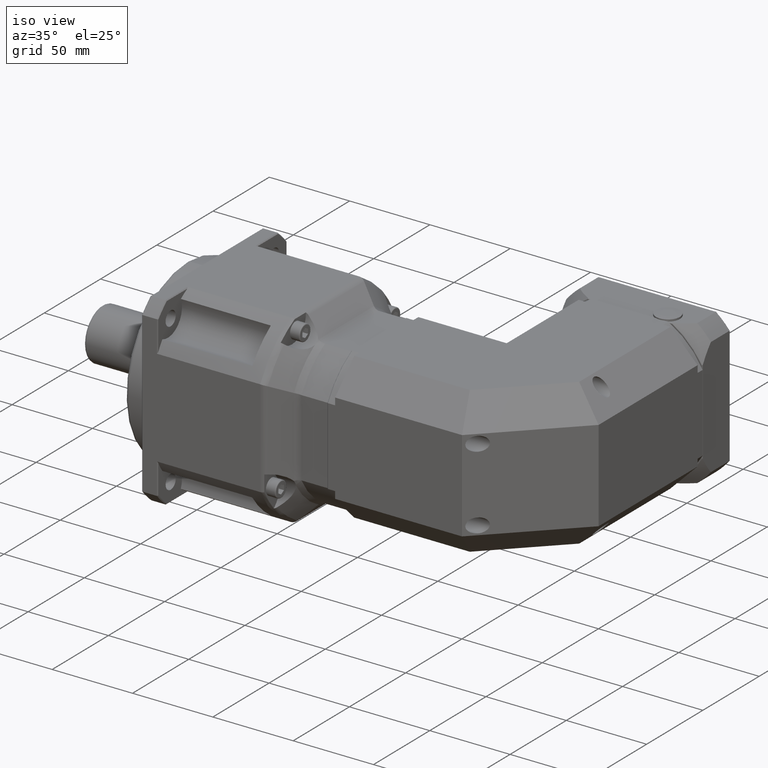
[diagram: clean part render]
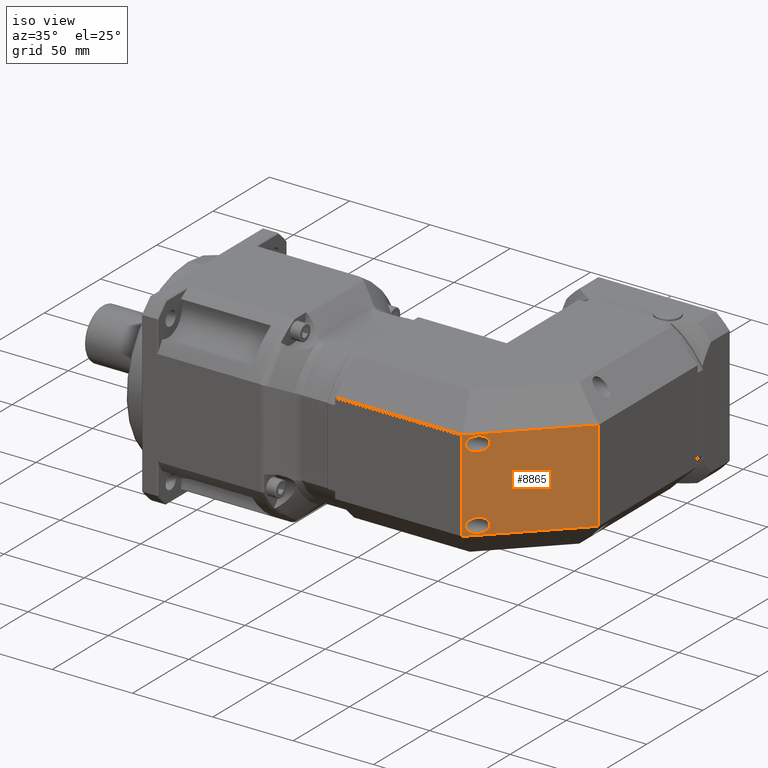
[diagram: same view with one face highlighted and labeled with its STEP entity id]
A machine part, iso view. The second image highlights one B-rep face of the part: STEP entity #8865.
In plain terms, the highlighted planar face has unit normal (0.7071, -0.7071, 0).
Its self-contained STEP definition (entity closure, byte-faithful):
#184=ELLIPSE('',#9743,6.36396103067893,4.5);
#185=ELLIPSE('',#9744,6.36396103067893,4.5);
#527=LINE('',#15135,#990);
#548=LINE('',#15200,#1011);
#549=LINE('',#15202,#1012);
#550=LINE('',#15203,#1013);
#990=VECTOR('',#11519,57.);
#1011=VECTOR('',#11578,70.7106781186548);
#1012=VECTOR('',#11579,56.9999999999709);
#1013=VECTOR('',#11580,70.7106781186548);
#1919=FACE_BOUND('',#3232,.T.);
#1920=FACE_BOUND('',#3233,.T.);
#2507=FACE_OUTER_BOUND('',#3231,.T.);
#3231=EDGE_LOOP('',(#7252,#7253,#7254,#7255));
#3232=EDGE_LOOP('',(#7256));
#3233=EDGE_LOOP('',(#7257));
#4472=VERTEX_POINT('',#15132);
#4473=VERTEX_POINT('',#15134);
#4498=VERTEX_POINT('',#15199);
#4499=VERTEX_POINT('',#15201);
#4500=VERTEX_POINT('',#15204);
#4501=VERTEX_POINT('',#15206);
#5466=EDGE_CURVE('',#4473,#4472,#527,.T.);
#5497=EDGE_CURVE('',#4498,#4472,#548,.T.);
#5498=EDGE_CURVE('',#4498,#4499,#549,.T.);
#5499=EDGE_CURVE('',#4473,#4499,#550,.T.);
#5500=EDGE_CURVE('',#4500,#4500,#184,.T.);
#5501=EDGE_CURVE('',#4501,#4501,#185,.T.);
#7252=ORIENTED_EDGE('',*,*,#5497,.F.);
#7253=ORIENTED_EDGE('',*,*,#5498,.T.);
#7254=ORIENTED_EDGE('',*,*,#5499,.F.);
#7255=ORIENTED_EDGE('',*,*,#5466,.T.);
#7256=ORIENTED_EDGE('',*,*,#5500,.T.);
#7257=ORIENTED_EDGE('',*,*,#5501,.T.);
#8390=PLANE('',#9742);
#8865=ADVANCED_FACE('',(#2507,#1919,#1920),#8390,.T.);
#9742=AXIS2_PLACEMENT_3D('',#15198,#11576,#11577);
#9743=AXIS2_PLACEMENT_3D('',#15205,#11581,#11582);
#9744=AXIS2_PLACEMENT_3D('',#15207,#11583,#11584);
#11519=DIRECTION('',(6.05789699811209E-16,5.28270955673289E-16,-1.));
#11576=DIRECTION('center_axis',(0.707106781186548,-0.707106781186547,5.48140296489891E-17));
#11577=DIRECTION('ref_axis',(0.,-3.5527136788005E-16,1.));
#11578=DIRECTION('',(-0.707106781186547,-0.707106781186548,-6.63871873512035E-16));
#11579=DIRECTION('',(-6.05789699811209E-16,-5.28270955673289E-16,1.));
#11580=DIRECTION('',(0.707106781186547,0.707106781186548,8.01901979769949E-16));
#11581=DIRECTION('center_axis',(-0.707106781186548,0.707106781186547,-5.48140296489891E-17));
#11582=DIRECTION('ref_axis',(-0.707106781186547,-0.707106781186548,-6.63871873512035E-16));
#11583=DIRECTION('center_axis',(-0.707106781186548,0.707106781186547,-5.48140296489891E-17));
#11584=DIRECTION('ref_axis',(-0.707106781186547,-0.707106781186548,-6.63871873512035E-16));
#15132=CARTESIAN_POINT('',(71.6854365143615,-9.43917799761841,49.875721489125));
#15134=CARTESIAN_POINT('',(71.6854365143614,-9.43917799761844,106.875721489125));
#15135=CARTESIAN_POINT('',(71.6854365143614,-9.43917799761844,101.125721489125));
#15198=CARTESIAN_POINT('Origin',(96.6854365143614,15.5608220023816,101.125721489125));
#15199=CARTESIAN_POINT('',(121.685436514361,40.5608220023816,49.8757214891251));
#15200=CARTESIAN_POINT('',(63.1854365143615,-17.9391779976184,49.875721489125));
#15201=CARTESIAN_POINT('',(121.685436514361,40.5608220023816,106.875721489096));
#15202=CARTESIAN_POINT('',(121.685436514361,40.5608220023816,101.125721489125));
#15203=CARTESIAN_POINT('',(85.9354365143614,4.81082200238157,106.875721489125));
#15204=CARTESIAN_POINT('',(81.9132198455611,0.788605333581249,55.413221489125));
#15205=CARTESIAN_POINT('Origin',(77.4132198455611,-3.71139466641876,55.413221489125));
#15206=CARTESIAN_POINT('',(81.9132198455611,0.788605333581232,101.338221489125));
#15207=CARTESIAN_POINT('Origin',(77.4132198455611,-3.71139466641877,101.338221489125));